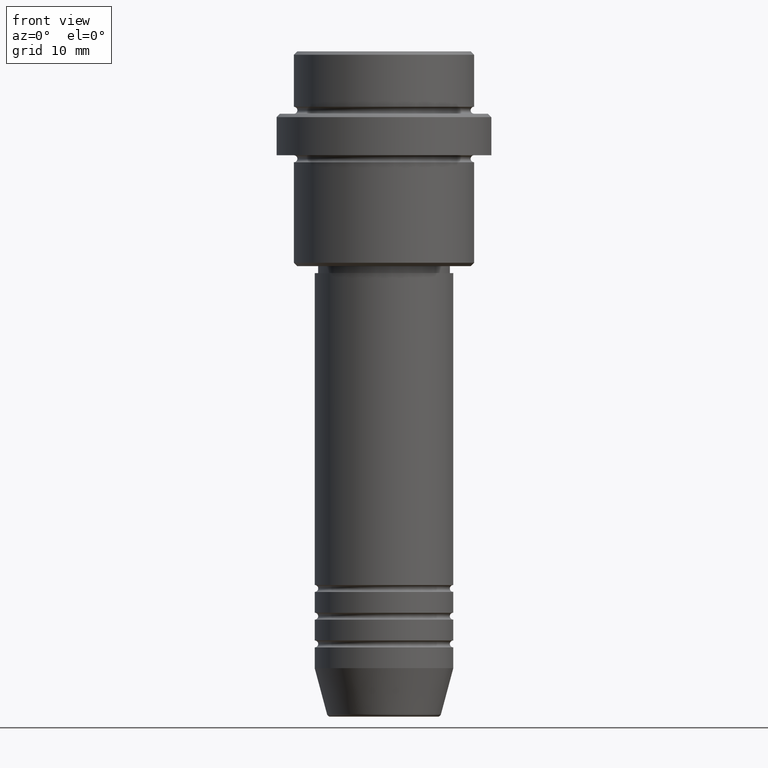
[diagram: clean part render]
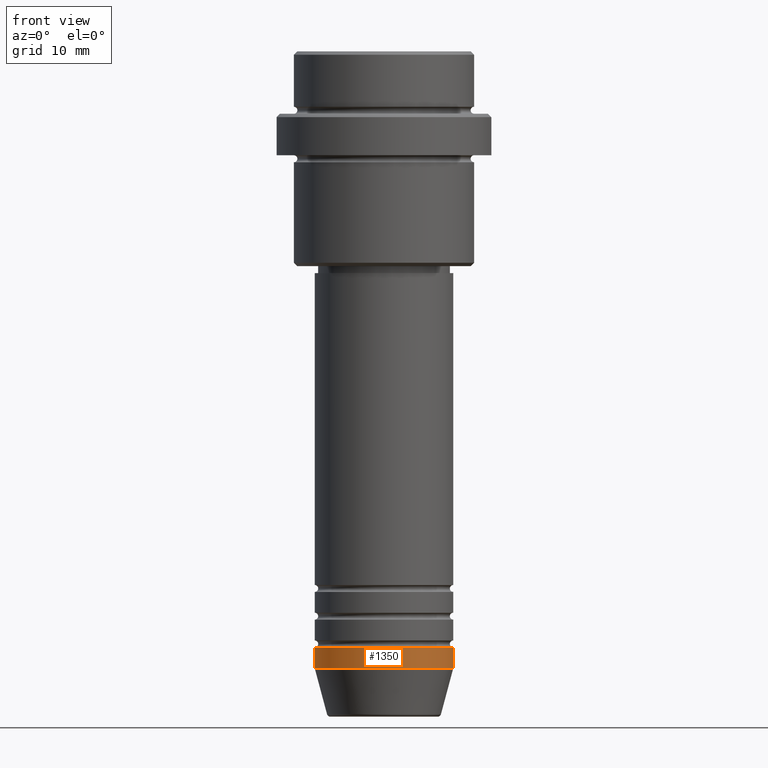
[diagram: same view with one face highlighted and labeled with its STEP entity id]
A machine part, front view. The second image highlights one B-rep face of the part: STEP entity #1350.
In plain terms, the highlighted cylindrical surface (partial cylindrical patch) has radius 10 mm, axis along (-0, -0, 1).
Its self-contained STEP definition (entity closure, byte-faithful):
#7 = ORIENTED_EDGE ( 'NONE', *, *, #730, .T. ) ;
#31 = AXIS2_PLACEMENT_3D ( 'NONE', #907, #1114, #126 ) ;
#52 = AXIS2_PLACEMENT_3D ( 'NONE', #874, #552, #1314 ) ;
#73 = ORIENTED_EDGE ( 'NONE', *, *, #656, .T. ) ;
#126 = DIRECTION ( 'NONE',  ( 1.000000000000000000, 0.000000000000000000, 0.000000000000000000 ) ) ;
#131 = CARTESIAN_POINT ( 'NONE',  ( -10.00000000000000000, 1.224646799147353256E-15, -86.00000000000000000 ) ) ;
#181 = CARTESIAN_POINT ( 'NONE',  ( 0.000000000000000000, 0.000000000000000000, -89.00000000000000000 ) ) ;
#342 = EDGE_CURVE ( 'NONE', #547, #738, #1096, .T. ) ;
#484 = EDGE_CURVE ( 'NONE', #1148, #547, #1231, .T. ) ;
#512 = FACE_OUTER_BOUND ( 'NONE', #1241, .T. ) ;
#525 = CYLINDRICAL_SURFACE ( 'NONE', #31, 10.00000000000000000 ) ;
#547 = VERTEX_POINT ( 'NONE', #131 ) ;
#552 = DIRECTION ( 'NONE',  ( -0.000000000000000000, -0.000000000000000000, 1.000000000000000000 ) ) ;
#624 = DIRECTION ( 'NONE',  ( -0.000000000000000000, -0.000000000000000000, 1.000000000000000000 ) ) ;
#656 = EDGE_CURVE ( 'NONE', #1148, #701, #758, .T. ) ;
#666 = VECTOR ( 'NONE', #1290, 1000.000000000000000 ) ;
#673 = DIRECTION ( 'NONE',  ( -0.000000000000000000, -0.000000000000000000, 1.000000000000000000 ) ) ;
#687 = CARTESIAN_POINT ( 'NONE',  ( -10.00000000000000000, 1.224646799147353256E-15, 0.000000000000000000 ) ) ;
#701 = VERTEX_POINT ( 'NONE', #1024 ) ;
#705 = CARTESIAN_POINT ( 'NONE',  ( 10.00000000000000000, 0.000000000000000000, 0.000000000000000000 ) ) ;
#730 = EDGE_CURVE ( 'NONE', #701, #738, #915, .T. ) ;
#738 = VERTEX_POINT ( 'NONE', #749 ) ;
#749 = CARTESIAN_POINT ( 'NONE',  ( 10.00000000000000000, 0.000000000000000000, -86.00000000000000000 ) ) ;
#758 = CIRCLE ( 'NONE', #902, 10.00000000000000000 ) ;
#874 = CARTESIAN_POINT ( 'NONE',  ( 0.000000000000000000, 0.000000000000000000, -86.00000000000000000 ) ) ;
#902 = AXIS2_PLACEMENT_3D ( 'NONE', #181, #624, #938 ) ;
#907 = CARTESIAN_POINT ( 'NONE',  ( 0.000000000000000000, 0.000000000000000000, 0.000000000000000000 ) ) ;
#915 = LINE ( 'NONE', #705, #666 ) ;
#938 = DIRECTION ( 'NONE',  ( 1.000000000000000000, 0.000000000000000000, 0.000000000000000000 ) ) ;
#1024 = CARTESIAN_POINT ( 'NONE',  ( 10.00000000000000000, 0.000000000000000000, -89.00000000000000000 ) ) ;
#1096 = CIRCLE ( 'NONE', #52, 10.00000000000000000 ) ;
#1114 = DIRECTION ( 'NONE',  ( -0.000000000000000000, -0.000000000000000000, 1.000000000000000000 ) ) ;
#1148 = VERTEX_POINT ( 'NONE', #1303 ) ;
#1161 = VECTOR ( 'NONE', #673, 1000.000000000000000 ) ;
#1231 = LINE ( 'NONE', #687, #1161 ) ;
#1241 = EDGE_LOOP ( 'NONE', ( #1285, #73, #7, #1368 ) ) ;
#1285 = ORIENTED_EDGE ( 'NONE', *, *, #484, .F. ) ;
#1290 = DIRECTION ( 'NONE',  ( -0.000000000000000000, -0.000000000000000000, 1.000000000000000000 ) ) ;
#1303 = CARTESIAN_POINT ( 'NONE',  ( -10.00000000000000000, 1.224646799147353256E-15, -89.00000000000000000 ) ) ;
#1314 = DIRECTION ( 'NONE',  ( 1.000000000000000000, 0.000000000000000000, 0.000000000000000000 ) ) ;
#1350 = ADVANCED_FACE ( 'NONE', ( #512 ), #525, .T. ) ;
#1368 = ORIENTED_EDGE ( 'NONE', *, *, #342, .F. ) ;